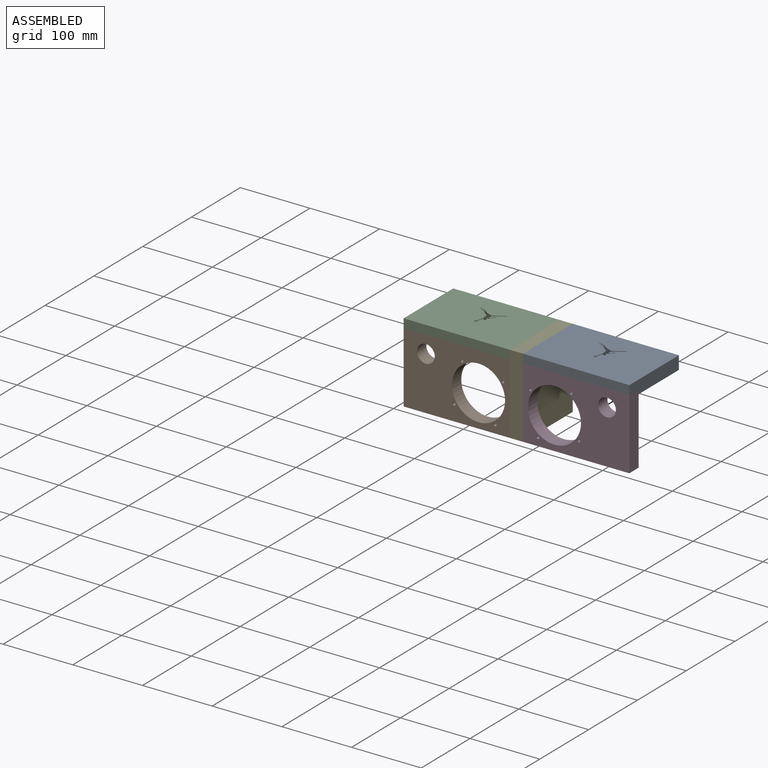
[diagram: assembled view]
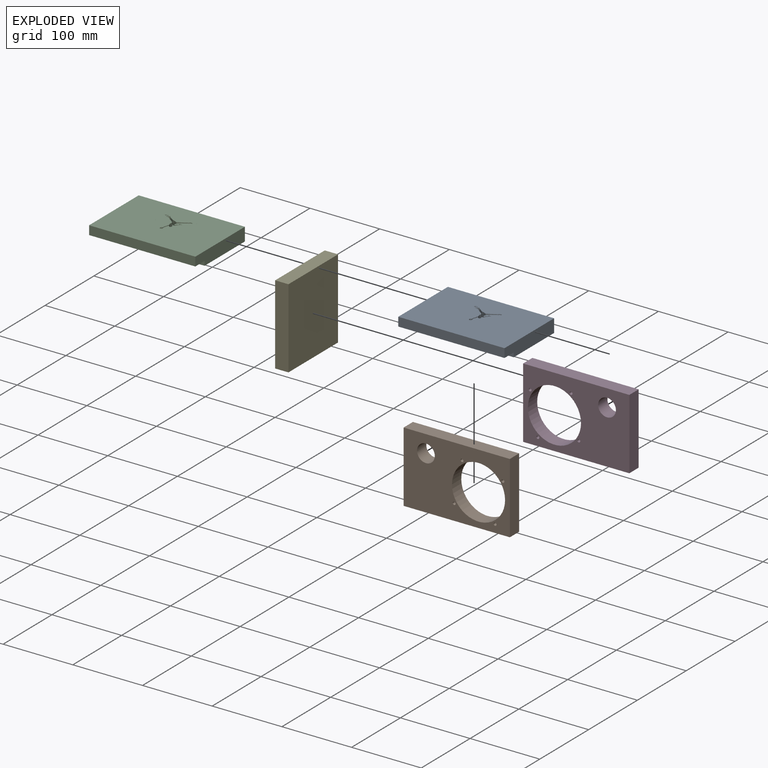
[diagram: exploded view]
GUIDED TOUR — MATED ASSEMBLY (Onshape document c4c73edd5049388b07cf1749, AutoMate assembly c4c73edd5049388b07cf1749_c25363004c646128de8135ba_3f393deac2e4389b0488b318_default)

This assembly has 5 components, labeled P0..P4 below (a component is one placed occurrence of a part; the same part can appear more than once), held together by 4 mates. A mate is a constraint between two components; its type names the relative motion it leaves free:
  FASTENED — locks the two components together rigidly (no relative motion).
Axis/direction vectors are unit vectors and 'through' points are millimeter coordinates, both in the assembly's world frame.

MATES
  1. FASTENED "Fastened 3": P0 <-> P4, direction (-1.000, 0.000, 0.000) through (143.09, 75.60, 11.51) mm
  2. FASTENED "Fastened 2": P2 <-> P4, direction (1.000, 0.000, 0.000) through (124.04, 75.60, 11.51) mm
  3. FASTENED "Fastened 4": P0 <-> P3, direction (0.000, 0.000, 1.000) through (143.09, 75.60, -1.19) mm
  4. FASTENED "Fastened 1": P1 <-> P2, direction (0.000, 0.000, 1.000) through (124.04, 75.60, -1.19) mm

ASSEMBLY ORDER
  1. P3 — the base component [order verified]
  2. P0 [order verified]
  3. P4 [order verified]
  4. P1 [order verified]
  5. P2 [order verified]
Order-tag legend:
  [order verified] — this step's position reverses a verified removal order: the component was checked to insert without passing through the ones already placed.

Of the 5 components, 5 carry the full construction recipe — the FeatureScript program that regenerates the part's solid from scratch; the rest are supplied as boundary geometry only.
Each toured component is shown spotlighted twice — in the assembled view, then in the exploded view, where a leader line traces a displaced component back to its assembled socket (saturated green if recipe-attached, orange if geometry-only; every other component desaturated gray) — followed by its recipe or geometry summary and the mates that hold it.
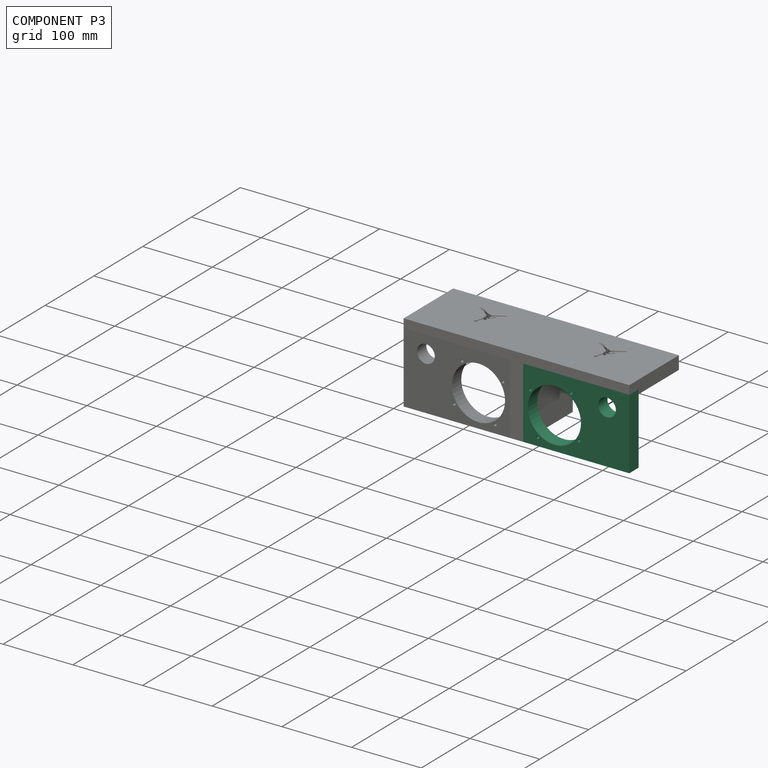
[diagram: component P3 — assembled]
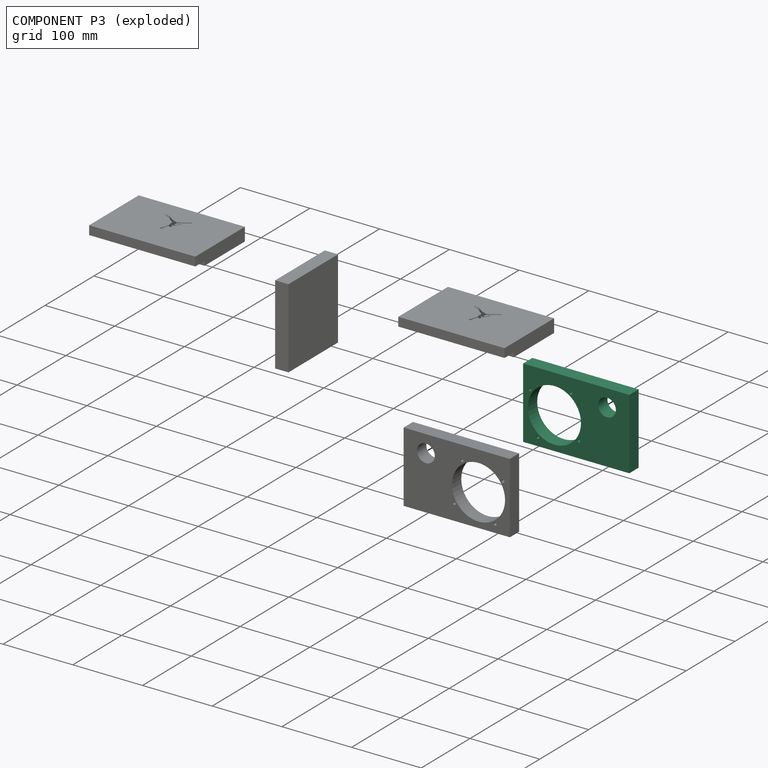
[diagram: component P3 — exploded]
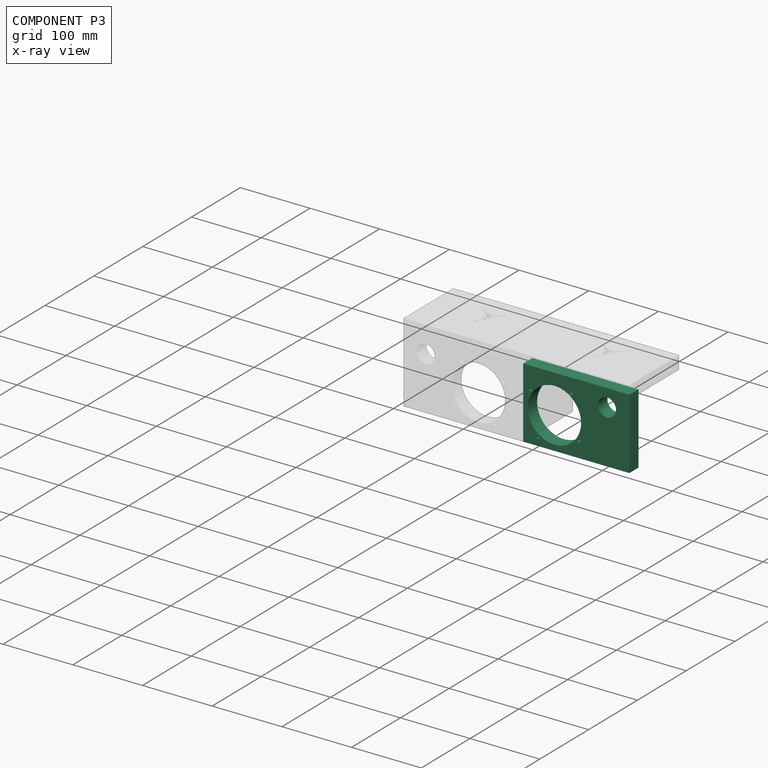
[diagram: component P3 — x-ray view]
COMPONENT P3 — same part as P1 (CADFS 00364374); its construction recipe is shown at P1.
Held by: FASTENED mate "Fastened 4" to P0.
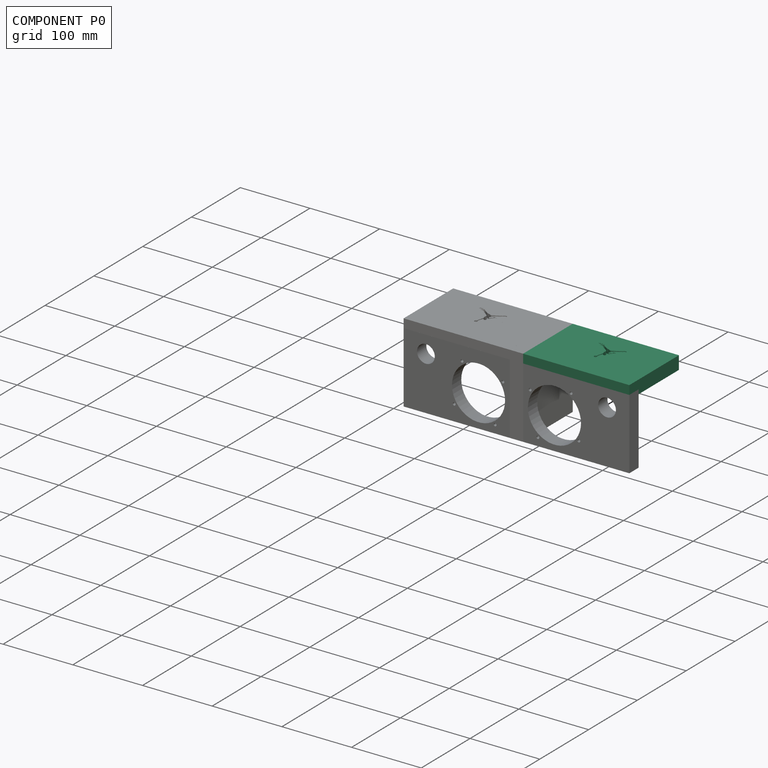
[diagram: component P0 — assembled]
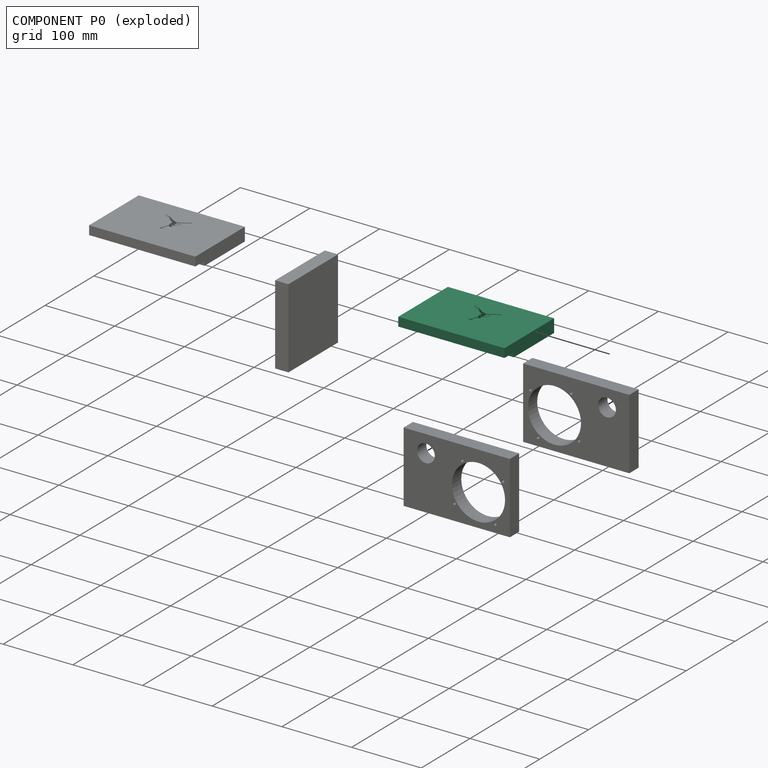
[diagram: component P0 — exploded]
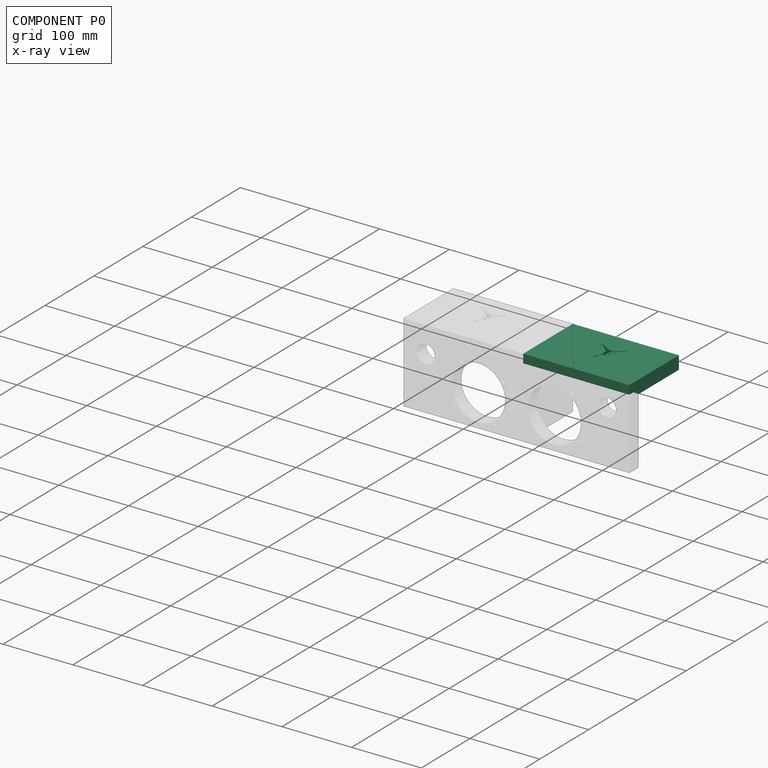
[diagram: component P0 — x-ray view]
COMPONENT P0 — recipe-attached (CADFS 00364375, mesh-verified: the recipe's output STEP matches this component's geometry to below the mesh-comparison resolution (tessellation chordal tolerance ~0.276 mm)).
Held by: FASTENED mate "Fastened 3" to P4; FASTENED mate "Fastened 4" to P3.
Construction recipe (FeatureScript — the CAD program that rebuilds this solid; sketch coordinates are in the units given by the * unit suffixes, e.g. mm):

FeatureScript 1511;
import(path : "onshape/std/geometry.fs", version : "1511.0");
import(path : "onshape/std/common.fs", version : "1511.0");
const mm = millimeter;
const VERTEX = EntityType.VERTEX;
const EDGE = EntityType.EDGE;
const FACE = EntityType.FACE;
const BODY = EntityType.BODY;
function v(x, y){return vector(x, y);}
function OD(order){return orderDisambiguation(order);}
function OSD(set){return originalSetDisambiguation(set);}
function TD(topology){return topologyDisambiguation(topology);}
function TDD(query){return trueDependencyDisambiguation(query);}
function sQuery(a, b, c) {return sketchEntityQuery(a, b, c);}

annotation { "Feature Type Name" : "Feature", "Feature Type Description" : "" }
export const myFeature = defineFeature(function(context is Context, id is Id, definition is map)
    precondition{}
    {
        {
            var Q0;
            Q0=qCreatedBy(makeId("Top.planeOp"),FACE);
            var sketch = newSketch(context, id + "F0", { "sketchPlane" : qUnion([Q0])});
            skLineSegment(sketch, "E0.bottom", {"start": v(-78.3, 43.63) * mm, "end": v(74.1, 43.63) * mm});
            skLineSegment(sketch, "E0.top", {"start": v(-78.3, -57.97) * mm, "end": v(74.1, -57.97) * mm});
            skLineSegment(sketch, "E0.left", {"start": v(-78.3, 43.63) * mm, "end": v(-78.3, -57.97) * mm});
            skLineSegment(sketch, "E0.right", {"start": v(74.1, 43.63) * mm, "end": v(74.1, -57.97) * mm});
            skSolve(sketch);
        }
        {
            var Q0;
            Q0 = qSketchRegion(id + "F0", true);
            extrude(context, id + "F1", {"entities" : qUnion([Q0]), "depth" : 19.05 * mm});
        }
        {
            var Q0;
            Q0=makeQuery(id+"F1.opExtrude","CAP_FACE",FACE,{"disambiguationData":[OSD([sQuery(id+"F0.wireOp",EDGE,"E0.bottom"),sQuery(id+"F0.wireOp",EDGE,"E0.top"),sQuery(id+"F0.wireOp",EDGE,"E0.left"),sQuery(id+"F0.wireOp",EDGE,"E0.right")])],"isStart":true});
            var sketch = newSketch(context, id + "F2", { "sketchPlane" : qUnion([Q0])});
            skLineSegment(sketch, "E1.bottom", {"start": v(74.1, 57.97) * mm, "end": v(-78.3, 57.97) * mm});
            skLineSegment(sketch, "E1.top", {"start": v(74.1, 38.92) * mm, "end": v(-78.3, 38.92) * mm});
            skLineSegment(sketch, "E1.left", {"start": v(74.1, 57.97) * mm, "end": v(74.1, 38.92) * mm});
            skLineSegment(sketch, "E1.right", {"start": v(-78.3, 57.97) * mm, "end": v(-78.3, 38.92) * mm});
            skSolve(sketch);
        }
        {
            var Q0;
            Q0 = qSketchRegion(id + "F2", true);
            extrude(context, id + "F3", {"entities" : qUnion([Q0]), "operationType" : NewBodyOperationType.REMOVE, "oppositeDirection" : true, "depth" : 6.35 * mm});
        }
        {
            var Q0;
            Q0=makeQuery(id+"F1.opExtrude","CAP_FACE",FACE,{"disambiguationData":[OSD([sQuery(id+"F0.wireOp",EDGE,"E0.bottom"),sQuery(id+"F0.wireOp",EDGE,"E0.top"),sQuery(id+"F0.wireOp",EDGE,"E0.left"),sQuery(id+"F0.wireOp",EDGE,"E0.right")])],"isStart":false});
            var sketch = newSketch(context, id + "F4", { "sketchPlane" : qUnion([Q0])});
            skLineSegment(sketch, "E2", {"start": v(-20.56, 18.4) * mm, "end": v(-21.26, 16.34) * mm});
            skLineSegment(sketch, "E3", {"start": v(-21.26, 16.34) * mm, "end": v(-22.15, 16.34) * mm});
            skLineSegment(sketch, "E4", {"start": v(-22.15, 16.34) * mm, "end": v(-22.01, 16.76) * mm});
            skLineSegment(sketch, "E5", {"start": v(-21.49, 18.4) * mm, "end": v(-20.56, 18.4) * mm});
            skLineSegment(sketch, "E6", {"start": v(-18.45, 16.34) * mm, "end": v(-18.9, 16.34) * mm});
            skLineSegment(sketch, "E7", {"start": v(-18.9, 16.34) * mm, "end": v(-18.2, 18.4) * mm});
            skLineSegment(sketch, "E8", {"start": v(-18.2, 18.4) * mm, "end": v(-17.73, 18.4) * mm});
            skLineSegment(sketch, "E9", {"start": v(-17.73, 18.4) * mm, "end": v(-17.77, 17.47) * mm});
            skLineSegment(sketch, "E10", {"start": v(-17.77, 17.47) * mm, "end": v(-17.45, 18.4) * mm});
            skLineSegment(sketch, "E11", {"start": v(-17.45, 18.4) * mm, "end": v(-17, 18.4) * mm});
            skLineSegment(sketch, "E12", {"start": v(-17, 18.4) * mm, "end": v(-17.7, 16.34) * mm});
            skLineSegment(sketch, "E13", {"start": v(-17.7, 16.34) * mm, "end": v(-18.15, 16.34) * mm});
            skLineSegment(sketch, "E14", {"start": v(-18.15, 16.34) * mm, "end": v(-18.14, 17.27) * mm});
            skLineSegment(sketch, "E15", {"start": v(-18.14, 17.27) * mm, "end": v(-18.45, 16.34) * mm});
            skLineSegment(sketch, "E16", {"start": v(-19.11, 16.34) * mm, "end": v(-19.65, 16.34) * mm});
            skLineSegment(sketch, "E17", {"start": v(-19.65, 16.34) * mm, "end": v(-18.95, 18.4) * mm});
            skLineSegment(sketch, "E18", {"start": v(-18.95, 18.4) * mm, "end": v(-18.41, 18.4) * mm});
            skLineSegment(sketch, "E19", {"start": v(-18.41, 18.4) * mm, "end": v(-19.11, 16.34) * mm, "construction": true});
            skLineSegment(sketch, "E20", {"start": v(-20.64, 16.34) * mm, "end": v(-21.14, 16.34) * mm});
            skLineSegment(sketch, "E21", {"start": v(-21.14, 16.34) * mm, "end": v(-20.52, 17.27) * mm});
            skLineSegment(sketch, "E22", {"start": v(-20.52, 17.27) * mm, "end": v(-20.47, 18.4) * mm});
            skLineSegment(sketch, "E23", {"start": v(-20.47, 18.4) * mm, "end": v(-19.92, 18.4) * mm});
            skLineSegment(sketch, "E24", {"start": v(-19.92, 18.4) * mm, "end": v(-20, 17.52) * mm});
            skLineSegment(sketch, "E25", {"start": v(-20, 17.52) * mm, "end": v(-19.7, 18.4) * mm});
            skLineSegment(sketch, "E26", {"start": v(-19.7, 18.4) * mm, "end": v(-19.16, 18.4) * mm});
            skLineSegment(sketch, "E27", {"start": v(-19.16, 18.4) * mm, "end": v(-19.86, 16.34) * mm});
            skLineSegment(sketch, "E28", {"start": v(-19.86, 16.34) * mm, "end": v(-20.4, 16.34) * mm});
            skLineSegment(sketch, "E29", {"start": v(-20.4, 16.34) * mm, "end": v(-20.12, 17.14) * mm});
            skLineSegment(sketch, "E30", {"start": v(-20.12, 17.14) * mm, "end": v(-20.64, 16.34) * mm});
            skCircle(sketch, "E31", {"center": v(23.17, 18.02) * mm, "radius": 0.1 * mm});
            skCircle(sketch, "E32", {"center": v(-23.17, 18.02) * mm, "radius": 0.1 * mm});
            skCircle(sketch, "E33", {"center": v(-23.17, -18.02) * mm, "radius": 0.1 * mm});
            skCircle(sketch, "E34", {"center": v(23.17, -18.02) * mm, "radius": 0.1 * mm});
            skCircle(sketch, "E35", {"center": v(23.17, -0.48) * mm, "radius": 0.1 * mm});
            skCircle(sketch, "E36", {"center": v(0, 18.02) * mm, "radius": 0.1 * mm});
            skCircle(sketch, "E37", {"center": v(-23.17, -0.48) * mm, "radius": 0.1 * mm});
            skCircle(sketch, "E38", {"center": v(0, -18.02) * mm, "radius": 0.1 * mm});
            skLineSegment(sketch, "E39", {"start": v(-3.9, -10.55) * mm, "end": v(-4, -11.58) * mm});
            skLineSegment(sketch, "E40", {"start": v(24.2, 19.05) * mm, "end": v(-24.2, 19.05) * mm, "construction": true});
            skLineSegment(sketch, "E41", {"start": v(-24.2, -19.05) * mm, "end": v(24.2, -19.05) * mm, "construction": true});
            skLineSegment(sketch, "E42", {"start": v(24.2, -19.05) * mm, "end": v(24.2, 19.05) * mm, "construction": true});
            skLineSegment(sketch, "E43", {"start": v(-24.2, 19.05) * mm, "end": v(-24.2, -19.05) * mm, "construction": true});
            skArc(sketch, "E44", {"start": v(-3.94, -10.35) * mm, "mid": v(-3.93, -10.45) * mm, "end": v(-3.9, -10.55) * mm});
            skArc(sketch, "E45", {"start": v(-1.72, -7.9) * mm, "mid": v(-1.37, -7.08) * mm, "end": v(-1.13, -6.21) * mm});
            skArc(sketch, "E46", {"start": v(-1.13, -6.21) * mm, "mid": v(-1.1, -6.16) * mm, "end": v(-1.08, -6.1) * mm});
            skArc(sketch, "E47", {"start": v(-1.75, -8.61) * mm, "mid": v(-1.7, -8.26) * mm, "end": v(-1.72, -7.9) * mm});
            skArc(sketch, "E48", {"start": v(-2.12, -9.3) * mm, "mid": v(-1.92, -8.97) * mm, "end": v(-1.75, -8.61) * mm});
            skArc(sketch, "E49", {"start": v(-2.08, -9.41) * mm, "mid": v(-2.08, -9.35) * mm, "end": v(-2.12, -9.3) * mm});
            skLineSegment(sketch, "E50", {"start": v(-2.49, -10.76) * mm, "end": v(-2.08, -9.41) * mm});
            skArc(sketch, "E51", {"start": v(-2.68, -10.92) * mm, "mid": v(-2.56, -10.87) * mm, "end": v(-2.49, -10.76) * mm});
            skLineSegment(sketch, "E52", {"start": v(-3.12, -12.7) * mm, "end": v(-2.68, -10.92) * mm});
            skArc(sketch, "E53", {"start": v(-2.97, -13.33) * mm, "mid": v(-3.02, -13) * mm, "end": v(-3.12, -12.7) * mm});
            skArc(sketch, "E54", {"start": v(-2.44, -14.7) * mm, "mid": v(-2.62, -13.99) * mm, "end": v(-2.97, -13.33) * mm});
            skArc(sketch, "E55", {"start": v(-4.28, -13.3) * mm, "mid": v(-5.57, -16.9) * mm, "end": v(-2.44, -14.7) * mm});
            skArc(sketch, "E56", {"start": v(-4.28, -13.3) * mm, "mid": v(-4.13, -13.17) * mm, "end": v(-4.19, -12.98) * mm});
            skArc(sketch, "E57", {"start": v(-4.17, -12.53) * mm, "mid": v(-4.23, -12.76) * mm, "end": v(-4.19, -12.98) * mm});
            skArc(sketch, "E58", {"start": v(-4.17, -12.53) * mm, "mid": v(-4.06, -12.06) * mm, "end": v(-4, -11.58) * mm});
            skArc(sketch, "E59", {"start": v(-3.8, -9.3) * mm, "mid": v(-3.9, -9.82) * mm, "end": v(-3.94, -10.35) * mm});
            skArc(sketch, "E60", {"start": v(-3.44, -8.7) * mm, "mid": v(-3.68, -8.97) * mm, "end": v(-3.8, -9.3) * mm});
            skArc(sketch, "E61", {"start": v(-2.87, -6.92) * mm, "mid": v(-3.21, -7.8) * mm, "end": v(-3.44, -8.7) * mm});
            skArc(sketch, "E62", {"start": v(-2.66, -5.86) * mm, "mid": v(-2.83, -6.38) * mm, "end": v(-2.87, -6.92) * mm});
            skArc(sketch, "E63", {"start": v(-2.65, -5.2) * mm, "mid": v(-2.66, -5.53) * mm, "end": v(-2.66, -5.86) * mm});
            skArc(sketch, "E64", {"start": v(-2.47, -4.51) * mm, "mid": v(-2.59, -4.85) * mm, "end": v(-2.65, -5.2) * mm});
            skArc(sketch, "E65", {"start": v(-2.1, -3.69) * mm, "mid": v(-2.3, -4.1) * mm, "end": v(-2.47, -4.51) * mm});
            skArc(sketch, "E66", {"start": v(-2.1, -3.69) * mm, "mid": v(-2.06, -3.55) * mm, "end": v(-2.04, -3.4) * mm});
            skArc(sketch, "E67", {"start": v(-2.04, -3.4) * mm, "mid": v(-2.03, -3.08) * mm, "end": v(-2.04, -2.76) * mm});
            skArc(sketch, "E68", {"start": v(-2.04, -2.76) * mm, "mid": v(-2.11, -2.3) * mm, "end": v(-2.23, -1.83) * mm});
            skArc(sketch, "E69", {"start": v(-2.23, -1.83) * mm, "mid": v(-2.36, -1.49) * mm, "end": v(-2.54, -1.17) * mm});
            skArc(sketch, "E70", {"start": v(-2.8, -0.48) * mm, "mid": v(-2.71, -0.84) * mm, "end": v(-2.54, -1.17) * mm});
            skArc(sketch, "E71", {"start": v(-2.87, 0.87) * mm, "mid": v(-2.85, 0.2) * mm, "end": v(-2.8, -0.48) * mm});
            skArc(sketch, "E72", {"start": v(-2.48, 3.52) * mm, "mid": v(-2.76, 2.21) * mm, "end": v(-2.87, 0.87) * mm});
            skArc(sketch, "E73", {"start": v(-2.77, 4.24) * mm, "mid": v(-2.65, 3.87) * mm, "end": v(-2.48, 3.52) * mm});
            skArc(sketch, "E74", {"start": v(-3.56, 4.85) * mm, "mid": v(-3.2, 4.5) * mm, "end": v(-2.77, 4.24) * mm});
            skArc(sketch, "E75", {"start": v(-3.64, 5.38) * mm, "mid": v(-3.66, 5.1) * mm, "end": v(-3.56, 4.85) * mm});
            skArc(sketch, "E76", {"start": v(-3.5, 5.63) * mm, "mid": v(-3.57, 5.5) * mm, "end": v(-3.64, 5.38) * mm});
            skArc(sketch, "E77", {"start": v(-7.2, 8.26) * mm, "mid": v(-5.5, 6.72) * mm, "end": v(-3.5, 5.63) * mm});
            skArc(sketch, "E78", {"start": v(-7.96, 8.54) * mm, "mid": v(-7.6, 8.35) * mm, "end": v(-7.2, 8.26) * mm});
            skArc(sketch, "E79", {"start": v(-12.78, 12.33) * mm, "mid": v(-10.45, 10.33) * mm, "end": v(-7.96, 8.54) * mm});
            skArc(sketch, "E80", {"start": v(-12.78, 12.33) * mm, "mid": v(-13.08, 12.64) * mm, "end": v(-13.43, 12.89) * mm});
            skArc(sketch, "E81", {"start": v(-13.54, 12.94) * mm, "mid": v(-13.49, 12.91) * mm, "end": v(-13.43, 12.89) * mm});
            skArc(sketch, "E82", {"start": v(-13.6, 13.18) * mm, "mid": v(-13.63, 13.05) * mm, "end": v(-13.54, 12.94) * mm});
            skArc(sketch, "E83", {"start": v(-13.52, 13.33) * mm, "mid": v(-13.56, 13.25) * mm, "end": v(-13.6, 13.18) * mm});
            skArc(sketch, "E84", {"start": v(-13.52, 13.33) * mm, "mid": v(-13.6, 13.47) * mm, "end": v(-13.74, 13.54) * mm});
            skArc(sketch, "E85", {"start": v(-14.02, 13.56) * mm, "mid": v(-13.88, 13.53) * mm, "end": v(-13.74, 13.54) * mm});
            skArc(sketch, "E86", {"start": v(-14.02, 13.56) * mm, "mid": v(-14.15, 13.67) * mm, "end": v(-14.3, 13.78) * mm});
            skArc(sketch, "E87", {"start": v(-14.3, 13.78) * mm, "mid": v(-14.45, 13.82) * mm, "end": v(-14.6, 13.77) * mm});
            skArc(sketch, "E88", {"start": v(-14.6, 13.77) * mm, "mid": v(-14.7, 13.7) * mm, "end": v(-14.78, 13.6) * mm});
            skArc(sketch, "E89", {"start": v(-14.98, 13.6) * mm, "mid": v(-14.88, 13.59) * mm, "end": v(-14.78, 13.6) * mm});
            skArc(sketch, "E90", {"start": v(-15.76, 13.19) * mm, "mid": v(-15.32, 13.3) * mm, "end": v(-14.98, 13.6) * mm});
            skArc(sketch, "E91", {"start": v(-15.9, 13.18) * mm, "mid": v(-15.83, 13.18) * mm, "end": v(-15.76, 13.19) * mm});
            skArc(sketch, "E92", {"start": v(-15.93, 13.35) * mm, "mid": v(-15.98, 13.25) * mm, "end": v(-15.9, 13.18) * mm});
            skArc(sketch, "E93", {"start": v(-15.93, 13.35) * mm, "mid": v(-15.77, 13.39) * mm, "end": v(-15.62, 13.46) * mm});
            skArc(sketch, "E94", {"start": v(-15.62, 13.46) * mm, "mid": v(-15.21, 13.8) * mm, "end": v(-14.9, 14.23) * mm});
            skLineSegment(sketch, "E95", {"start": v(-16.8, 14.28) * mm, "end": v(-14.9, 14.23) * mm});
            skArc(sketch, "E96", {"start": v(-16.8, 14.28) * mm, "mid": v(-16.96, 14.22) * mm, "end": v(-17.1, 14.13) * mm});
            skArc(sketch, "E97", {"start": v(-17.67, 13.8) * mm, "mid": v(-17.37, 13.94) * mm, "end": v(-17.1, 14.13) * mm});
            skArc(sketch, "E98", {"start": v(-18.09, 13.8) * mm, "mid": v(-17.88, 13.77) * mm, "end": v(-17.67, 13.8) * mm});
            skArc(sketch, "E99", {"start": v(-18.46, 14.04) * mm, "mid": v(-18.3, 13.88) * mm, "end": v(-18.09, 13.8) * mm});
            skArc(sketch, "E100", {"start": v(-18.48, 14.26) * mm, "mid": v(-18.5, 14.15) * mm, "end": v(-18.46, 14.04) * mm});
            skArc(sketch, "E101", {"start": v(-17.16, 15.47) * mm, "mid": v(-17.84, 14.9) * mm, "end": v(-18.48, 14.26) * mm});
            skArc(sketch, "E102", {"start": v(-16.05, 16.16) * mm, "mid": v(-16.63, 15.85) * mm, "end": v(-17.16, 15.47) * mm});
            skArc(sketch, "E103", {"start": v(-16.05, 16.16) * mm, "mid": v(-15.58, 16.42) * mm, "end": v(-15.16, 16.75) * mm});
            skArc(sketch, "E104", {"start": v(-14.47, 17.28) * mm, "mid": v(-14.84, 17.05) * mm, "end": v(-15.16, 16.75) * mm});
            skArc(sketch, "E105", {"start": v(-14.19, 17.24) * mm, "mid": v(-14.32, 17.3) * mm, "end": v(-14.47, 17.28) * mm});
            skArc(sketch, "E106", {"start": v(-13.74, 16.38) * mm, "mid": v(-13.93, 16.83) * mm, "end": v(-14.19, 17.24) * mm});
            skArc(sketch, "E107", {"start": v(-13.72, 16.24) * mm, "mid": v(-13.73, 16.31) * mm, "end": v(-13.74, 16.38) * mm});
            skArc(sketch, "E108", {"start": v(-13.05, 15.43) * mm, "mid": v(-13.34, 15.87) * mm, "end": v(-13.72, 16.24) * mm});
            skArc(sketch, "E109", {"start": v(-12.41, 14.78) * mm, "mid": v(-12.7, 15.14) * mm, "end": v(-13.05, 15.43) * mm});
            skArc(sketch, "E110", {"start": v(-12.41, 14.78) * mm, "mid": v(-12.23, 14.6) * mm, "end": v(-12.03, 14.44) * mm});
            skArc(sketch, "E111", {"start": v(-11.5, 14.35) * mm, "mid": v(-11.76, 14.43) * mm, "end": v(-12.03, 14.44) * mm});
            skArc(sketch, "E112", {"start": v(-10.03, 13.2) * mm, "mid": v(-10.75, 13.8) * mm, "end": v(-11.5, 14.35) * mm});
            skArc(sketch, "E113", {"start": v(-9.42, 12.95) * mm, "mid": v(-9.71, 13.1) * mm, "end": v(-10.03, 13.2) * mm});
            skArc(sketch, "E114", {"start": v(-9.42, 12.95) * mm, "mid": v(-8.57, 12.2) * mm, "end": v(-7.66, 11.52) * mm});
            skArc(sketch, "E115", {"start": v(-7.66, 11.52) * mm, "mid": v(-7.3, 11.23) * mm, "end": v(-6.91, 10.98) * mm});
            skArc(sketch, "E116", {"start": v(-6.18, 10.54) * mm, "mid": v(-6.53, 10.79) * mm, "end": v(-6.91, 10.98) * mm});
            skArc(sketch, "E117", {"start": v(-6.18, 10.54) * mm, "mid": v(-5.6, 10.38) * mm, "end": v(-5.02, 10.25) * mm});
            skArc(sketch, "E118", {"start": v(-3.08, 9.6) * mm, "mid": v(-4.03, 10) * mm, "end": v(-5.02, 10.25) * mm});
            skArc(sketch, "E119", {"start": v(-3.08, 9.6) * mm, "mid": v(-2.81, 9.45) * mm, "end": v(-2.52, 9.33) * mm});
            skArc(sketch, "E120", {"start": v(-1.2, 8.76) * mm, "mid": v(-1.86, 9.06) * mm, "end": v(-2.52, 9.33) * mm});
            skArc(sketch, "E121", {"start": v(0.56, 8.04) * mm, "mid": v(-0.3, 8.45) * mm, "end": v(-1.2, 8.76) * mm});
            skArc(sketch, "E122", {"start": v(0.56, 8.04) * mm, "mid": v(0.77, 8) * mm, "end": v(0.98, 8.06) * mm});
            skArc(sketch, "E123", {"start": v(0.98, 8.06) * mm, "mid": v(1.95, 8.49) * mm, "end": v(2.89, 9) * mm});
            skArc(sketch, "E124", {"start": v(6.07, 10.48) * mm, "mid": v(4.44, 9.8) * mm, "end": v(2.89, 9) * mm});
            skArc(sketch, "E125", {"start": v(9.63, 12.55) * mm, "mid": v(7.81, 11.58) * mm, "end": v(6.07, 10.48) * mm});
            skArc(sketch, "E126", {"start": v(9.63, 12.55) * mm, "mid": v(10.73, 13.26) * mm, "end": v(11.76, 14.08) * mm});
            skArc(sketch, "E127", {"start": v(11.97, 14.1) * mm, "mid": v(11.86, 14.12) * mm, "end": v(11.76, 14.08) * mm});
            skArc(sketch, "E128", {"start": v(12.08, 14.05) * mm, "mid": v(12.03, 14.08) * mm, "end": v(11.97, 14.1) * mm});
            skArc(sketch, "E129", {"start": v(12.08, 14.05) * mm, "mid": v(12.15, 14.03) * mm, "end": v(12.2, 14.06) * mm});
            skArc(sketch, "E130", {"start": v(12.59, 14.33) * mm, "mid": v(12.4, 14.2) * mm, "end": v(12.2, 14.06) * mm});
            skArc(sketch, "E131", {"start": v(12.84, 14.36) * mm, "mid": v(12.71, 14.36) * mm, "end": v(12.59, 14.33) * mm});
            skArc(sketch, "E132", {"start": v(13.09, 14.49) * mm, "mid": v(12.96, 14.44) * mm, "end": v(12.84, 14.36) * mm});
            skArc(sketch, "E133", {"start": v(13.09, 14.49) * mm, "mid": v(13.23, 14.61) * mm, "end": v(13.33, 14.78) * mm});
            skArc(sketch, "E134", {"start": v(13.48, 14.83) * mm, "mid": v(13.4, 14.82) * mm, "end": v(13.33, 14.78) * mm});
            skArc(sketch, "E135", {"start": v(13.48, 14.83) * mm, "mid": v(13.66, 15.03) * mm, "end": v(13.79, 15.25) * mm});
            skArc(sketch, "E136", {"start": v(14.1, 15.53) * mm, "mid": v(13.92, 15.43) * mm, "end": v(13.79, 15.25) * mm});
            skArc(sketch, "E137", {"start": v(14.27, 15.55) * mm, "mid": v(14.19, 15.55) * mm, "end": v(14.1, 15.53) * mm});
            skArc(sketch, "E138", {"start": v(14.27, 15.55) * mm, "mid": v(14.4, 15.68) * mm, "end": v(14.49, 15.83) * mm});
            skArc(sketch, "E139", {"start": v(14.65, 15.96) * mm, "mid": v(14.54, 15.93) * mm, "end": v(14.49, 15.83) * mm});
            skArc(sketch, "E140", {"start": v(14.76, 16.17) * mm, "mid": v(14.69, 16.07) * mm, "end": v(14.65, 15.96) * mm});
            skArc(sketch, "E141", {"start": v(15.05, 16.41) * mm, "mid": v(14.9, 16.3) * mm, "end": v(14.76, 16.17) * mm});
            skArc(sketch, "E142", {"start": v(15.34, 16.47) * mm, "mid": v(15.2, 16.46) * mm, "end": v(15.05, 16.41) * mm});
            skArc(sketch, "E143", {"start": v(15.55, 16.47) * mm, "mid": v(15.44, 16.47) * mm, "end": v(15.34, 16.47) * mm});
            skArc(sketch, "E144", {"start": v(15.55, 16.47) * mm, "mid": v(16, 16.37) * mm, "end": v(16.45, 16.48) * mm});
            skArc(sketch, "E145", {"start": v(16.45, 16.48) * mm, "mid": v(16.61, 16.57) * mm, "end": v(16.76, 16.67) * mm});
            skArc(sketch, "E146", {"start": v(17.45, 16.64) * mm, "mid": v(17.1, 16.7) * mm, "end": v(16.76, 16.67) * mm});
            skArc(sketch, "E147", {"start": v(18.02, 16.22) * mm, "mid": v(17.76, 16.46) * mm, "end": v(17.45, 16.64) * mm});
            skArc(sketch, "E148", {"start": v(18.47, 15.58) * mm, "mid": v(18.27, 15.92) * mm, "end": v(18.02, 16.22) * mm});
            skArc(sketch, "E149", {"start": v(18.46, 15.27) * mm, "mid": v(18.5, 15.42) * mm, "end": v(18.47, 15.58) * mm});
            skArc(sketch, "E150", {"start": v(17.94, 14.81) * mm, "mid": v(18.22, 15.01) * mm, "end": v(18.46, 15.27) * mm});
            skArc(sketch, "E151", {"start": v(17.24, 14.7) * mm, "mid": v(17.6, 14.72) * mm, "end": v(17.94, 14.81) * mm});
            skLineSegment(sketch, "E152", {"start": v(16.95, 14.7) * mm, "end": v(17.24, 14.7) * mm});
            skArc(sketch, "E153", {"start": v(16.95, 14.7) * mm, "mid": v(16.6, 14.6) * mm, "end": v(16.26, 14.44) * mm});
            skLineSegment(sketch, "E154", {"start": v(16.05, 14.44) * mm, "end": v(16.26, 14.44) * mm});
            skArc(sketch, "E155", {"start": v(15.65, 14.26) * mm, "mid": v(15.86, 14.34) * mm, "end": v(16.05, 14.44) * mm});
            skArc(sketch, "E156", {"start": v(15.64, 14.04) * mm, "mid": v(15.66, 14.15) * mm, "end": v(15.65, 14.26) * mm});
            skArc(sketch, "E157", {"start": v(15.42, 13.84) * mm, "mid": v(15.55, 13.92) * mm, "end": v(15.64, 14.04) * mm});
            skArc(sketch, "E158", {"start": v(15.24, 13.86) * mm, "mid": v(15.32, 13.83) * mm, "end": v(15.42, 13.84) * mm});
            skArc(sketch, "E159", {"start": v(15.24, 13.86) * mm, "mid": v(15.15, 13.85) * mm, "end": v(15.16, 13.77) * mm});
            skArc(sketch, "E160", {"start": v(15.25, 13.42) * mm, "mid": v(15.23, 13.6) * mm, "end": v(15.16, 13.77) * mm});
            skArc(sketch, "E161", {"start": v(15.25, 13.42) * mm, "mid": v(15.26, 13.3) * mm, "end": v(15.29, 13.2) * mm});
            skArc(sketch, "E162", {"start": v(15.32, 12.9) * mm, "mid": v(15.33, 13.05) * mm, "end": v(15.29, 13.2) * mm});
            skArc(sketch, "E163", {"start": v(15.2, 12.77) * mm, "mid": v(15.28, 12.82) * mm, "end": v(15.32, 12.9) * mm});
            skArc(sketch, "E164", {"start": v(15.05, 12.88) * mm, "mid": v(15.1, 12.8) * mm, "end": v(15.2, 12.77) * mm});
            skArc(sketch, "E165", {"start": v(14.95, 13.3) * mm, "mid": v(14.98, 13.09) * mm, "end": v(15.05, 12.88) * mm});
            skArc(sketch, "E166", {"start": v(14.95, 13.3) * mm, "mid": v(14.94, 13.4) * mm, "end": v(14.88, 13.48) * mm});
            skArc(sketch, "E167", {"start": v(14.88, 13.48) * mm, "mid": v(14.78, 13.5) * mm, "end": v(14.68, 13.47) * mm});
            skArc(sketch, "E168", {"start": v(14.68, 13.47) * mm, "mid": v(14.62, 13.38) * mm, "end": v(14.58, 13.28) * mm});
            skArc(sketch, "E169", {"start": v(14.4, 13.06) * mm, "mid": v(14.52, 13.15) * mm, "end": v(14.58, 13.28) * mm});
            skArc(sketch, "E170", {"start": v(14.18, 13.09) * mm, "mid": v(14.29, 13.05) * mm, "end": v(14.4, 13.06) * mm});
            skArc(sketch, "E171", {"start": v(14.04, 13.21) * mm, "mid": v(14.1, 13.14) * mm, "end": v(14.18, 13.09) * mm});
            skArc(sketch, "E172", {"start": v(13.8, 13.05) * mm, "mid": v(13.93, 13.1) * mm, "end": v(14.04, 13.21) * mm});
            skArc(sketch, "E173", {"start": v(13.8, 13.05) * mm, "mid": v(13.78, 13) * mm, "end": v(13.83, 12.96) * mm});
            skArc(sketch, "E174", {"start": v(13.83, 12.78) * mm, "mid": v(13.88, 12.87) * mm, "end": v(13.83, 12.96) * mm});
            skArc(sketch, "E175", {"start": v(13.83, 12.78) * mm, "mid": v(13.4, 12.45) * mm, "end": v(13.04, 12.06) * mm});
            skArc(sketch, "E176", {"start": v(8.45, 9.11) * mm, "mid": v(10.9, 10.33) * mm, "end": v(13.04, 12.06) * mm});
            skArc(sketch, "E177", {"start": v(7.2, 8.47) * mm, "mid": v(7.9, 8.64) * mm, "end": v(8.45, 9.11) * mm});
            skArc(sketch, "E178", {"start": v(4.65, 5.97) * mm, "mid": v(6.05, 7.1) * mm, "end": v(7.2, 8.47) * mm});
            skArc(sketch, "E179", {"start": v(3.95, 5.48) * mm, "mid": v(4.37, 5.63) * mm, "end": v(4.65, 5.97) * mm});
            skArc(sketch, "E180", {"start": v(3.95, 5.48) * mm, "mid": v(3.75, 5.4) * mm, "end": v(3.58, 5.25) * mm});
            skArc(sketch, "E181", {"start": v(3.58, 5.25) * mm, "mid": v(3.42, 4.91) * mm, "end": v(3.38, 4.54) * mm});
            skArc(sketch, "E182", {"start": v(3.37, 3.98) * mm, "mid": v(3.4, 4.26) * mm, "end": v(3.38, 4.54) * mm});
            skArc(sketch, "E183", {"start": v(3.12, 3.42) * mm, "mid": v(3.28, 3.68) * mm, "end": v(3.37, 3.98) * mm});
            skArc(sketch, "E184", {"start": v(2.63, 3.25) * mm, "mid": v(2.9, 3.27) * mm, "end": v(3.12, 3.42) * mm});
            skArc(sketch, "E185", {"start": v(2.25, 2.76) * mm, "mid": v(2.45, 3) * mm, "end": v(2.63, 3.25) * mm});
            skArc(sketch, "E186", {"start": v(2.47, 1.7) * mm, "mid": v(2.38, 2.23) * mm, "end": v(2.25, 2.76) * mm});
            skArc(sketch, "E187", {"start": v(2.75, 0.97) * mm, "mid": v(2.73, 1.38) * mm, "end": v(2.47, 1.7) * mm});
            skArc(sketch, "E188", {"start": v(3.31, 0.14) * mm, "mid": v(3.06, 0.58) * mm, "end": v(2.75, 0.97) * mm});
            skArc(sketch, "E189", {"start": v(3.31, 0.14) * mm, "mid": v(3.46, 0.1) * mm, "end": v(3.6, 0.1) * mm});
            skArc(sketch, "E190", {"start": v(4.2, 0.59) * mm, "mid": v(3.81, 0.46) * mm, "end": v(3.6, 0.1) * mm});
            skArc(sketch, "E191", {"start": v(6.35, 2.93) * mm, "mid": v(5.07, 1.94) * mm, "end": v(4.2, 0.59) * mm});
            skArc(sketch, "E192", {"start": v(6.35, 2.93) * mm, "mid": v(7, 3.67) * mm, "end": v(7.23, 4.62) * mm});
            skArc(sketch, "E193", {"start": v(7.23, 4.62) * mm, "mid": v(7.22, 4.72) * mm, "end": v(7.2, 4.82) * mm});
            skArc(sketch, "E194", {"start": v(7.23, 5.07) * mm, "mid": v(7.2, 4.95) * mm, "end": v(7.2, 4.82) * mm});
            skArc(sketch, "E195", {"start": v(7.23, 5.07) * mm, "mid": v(7.24, 5.15) * mm, "end": v(7.22, 5.22) * mm});
            skArc(sketch, "E196", {"start": v(7.22, 5.22) * mm, "mid": v(7.12, 5.33) * mm, "end": v(6.99, 5.4) * mm});
            skArc(sketch, "E197", {"start": v(6.74, 5.5) * mm, "mid": v(6.86, 5.43) * mm, "end": v(6.99, 5.4) * mm});
            skArc(sketch, "E198", {"start": v(6.78, 5.77) * mm, "mid": v(6.71, 5.64) * mm, "end": v(6.74, 5.5) * mm});
            skArc(sketch, "E199", {"start": v(7.3, 5.78) * mm, "mid": v(7.04, 5.84) * mm, "end": v(6.78, 5.77) * mm});
            skArc(sketch, "E200", {"start": v(7.76, 5.42) * mm, "mid": v(7.56, 5.63) * mm, "end": v(7.3, 5.78) * mm});
            skArc(sketch, "E201", {"start": v(7.76, 5.42) * mm, "mid": v(7.85, 5.4) * mm, "end": v(7.93, 5.43) * mm});
            skLineSegment(sketch, "E202", {"start": v(8.3, 5.86) * mm, "end": v(7.93, 5.43) * mm});
            skArc(sketch, "E203", {"start": v(8.54, 6.04) * mm, "mid": v(8.41, 5.96) * mm, "end": v(8.3, 5.86) * mm});
            skArc(sketch, "E204", {"start": v(8.74, 6.08) * mm, "mid": v(8.63, 6.07) * mm, "end": v(8.54, 6.04) * mm});
            skArc(sketch, "E205", {"start": v(8.84, 5.88) * mm, "mid": v(8.84, 6) * mm, "end": v(8.74, 6.08) * mm});
            skArc(sketch, "E206", {"start": v(8.69, 5.63) * mm, "mid": v(8.77, 5.75) * mm, "end": v(8.84, 5.88) * mm});
            skArc(sketch, "E207", {"start": v(8.69, 5.63) * mm, "mid": v(8.69, 5.57) * mm, "end": v(8.74, 5.55) * mm});
            skArc(sketch, "E208", {"start": v(8.74, 5.55) * mm, "mid": v(8.93, 5.6) * mm, "end": v(9.12, 5.67) * mm});
            skArc(sketch, "E209", {"start": v(9.55, 5.81) * mm, "mid": v(9.32, 5.76) * mm, "end": v(9.12, 5.67) * mm});
            skArc(sketch, "E210", {"start": v(9.9, 5.79) * mm, "mid": v(9.73, 5.82) * mm, "end": v(9.55, 5.81) * mm});
            skArc(sketch, "E211", {"start": v(9.99, 5.64) * mm, "mid": v(9.99, 5.73) * mm, "end": v(9.9, 5.79) * mm});
            skArc(sketch, "E212", {"start": v(9.74, 5.48) * mm, "mid": v(9.88, 5.54) * mm, "end": v(9.99, 5.64) * mm});
            skArc(sketch, "E213", {"start": v(9.74, 5.48) * mm, "mid": v(9.53, 5.4) * mm, "end": v(9.33, 5.28) * mm});
            skArc(sketch, "E214", {"start": v(9.33, 5.28) * mm, "mid": v(9.33, 5.23) * mm, "end": v(9.38, 5.21) * mm});
            skArc(sketch, "E215", {"start": v(10.84, 5.22) * mm, "mid": v(10.11, 5.28) * mm, "end": v(9.38, 5.21) * mm});
            skArc(sketch, "E216", {"start": v(10.97, 5.09) * mm, "mid": v(10.94, 5.18) * mm, "end": v(10.84, 5.22) * mm});
            skArc(sketch, "E217", {"start": v(10.91, 4.96) * mm, "mid": v(10.96, 5.02) * mm, "end": v(10.97, 5.09) * mm});
            skArc(sketch, "E218", {"start": v(10.91, 4.96) * mm, "mid": v(10.3, 4.91) * mm, "end": v(9.7, 4.82) * mm});
            skArc(sketch, "E219", {"start": v(9.7, 4.82) * mm, "mid": v(9.27, 4.64) * mm, "end": v(8.88, 4.4) * mm});
            skArc(sketch, "E220", {"start": v(8.67, 4.15) * mm, "mid": v(8.78, 4.27) * mm, "end": v(8.88, 4.4) * mm});
            skArc(sketch, "E221", {"start": v(8.67, 4.15) * mm, "mid": v(8.29, 3.8) * mm, "end": v(7.96, 3.4) * mm});
            skArc(sketch, "E222", {"start": v(5.86, 0.24) * mm, "mid": v(7.06, 1.72) * mm, "end": v(7.96, 3.4) * mm});
            skArc(sketch, "E223", {"start": v(5.1, -1.02) * mm, "mid": v(5.56, -0.44) * mm, "end": v(5.86, 0.24) * mm});
            skArc(sketch, "E224", {"start": v(4.25, -2.45) * mm, "mid": v(4.72, -1.76) * mm, "end": v(5.1, -1.02) * mm});
            skArc(sketch, "E225", {"start": v(3.84, -2.9) * mm, "mid": v(4.07, -2.7) * mm, "end": v(4.25, -2.45) * mm});
            skArc(sketch, "E226", {"start": v(3.35, -3.04) * mm, "mid": v(3.61, -3.01) * mm, "end": v(3.84, -2.9) * mm});
            skArc(sketch, "E227", {"start": v(3.35, -3.04) * mm, "mid": v(3.04, -3.26) * mm, "end": v(2.82, -3.57) * mm});
            skArc(sketch, "E228", {"start": v(2.66, -3.95) * mm, "mid": v(2.76, -3.77) * mm, "end": v(2.82, -3.57) * mm});
            skArc(sketch, "E229", {"start": v(3.43, -4.97) * mm, "mid": v(3.14, -4.4) * mm, "end": v(2.66, -3.95) * mm});
            skArc(sketch, "E230", {"start": v(3.37, -5.82) * mm, "mid": v(3.46, -5.4) * mm, "end": v(3.43, -4.97) * mm});
            skArc(sketch, "E231", {"start": v(2.06, -7.06) * mm, "mid": v(2.86, -6.59) * mm, "end": v(3.37, -5.82) * mm});
            skArc(sketch, "E232", {"start": v(0.9, -6.84) * mm, "mid": v(1.46, -7.07) * mm, "end": v(2.06, -7.06) * mm});
            skArc(sketch, "E233", {"start": v(0.9, -6.84) * mm, "mid": v(0.7, -6.62) * mm, "end": v(0.49, -6.42) * mm});
            skArc(sketch, "E234", {"start": v(0.27, -6.23) * mm, "mid": v(0.35, -6.35) * mm, "end": v(0.49, -6.42) * mm});
            skArc(sketch, "E235", {"start": v(-0.1, -6.12) * mm, "mid": v(0.08, -6.19) * mm, "end": v(0.27, -6.23) * mm});
            skArc(sketch, "E236", {"start": v(-0.22, -6) * mm, "mid": v(-0.17, -6.08) * mm, "end": v(-0.1, -6.12) * mm});
            skArc(sketch, "E237", {"start": v(-0.2, -5.73) * mm, "mid": v(-0.23, -5.87) * mm, "end": v(-0.22, -6) * mm});
            skArc(sketch, "E238", {"start": v(-0.42, -5.38) * mm, "mid": v(-0.35, -5.58) * mm, "end": v(-0.2, -5.73) * mm});
            skArc(sketch, "E239", {"start": v(-1.08, -6.1) * mm, "mid": v(-0.7, -5.8) * mm, "end": v(-0.42, -5.38) * mm});
            skLineSegment(sketch, "E240", {"start": v(-22.01, 16.76) * mm, "end": v(-21.65, 16.76) * mm});
            skLineSegment(sketch, "E241", {"start": v(-21.52, 17.15) * mm, "end": v(-21.86, 17.15) * mm});
            skLineSegment(sketch, "E242", {"start": v(-21.86, 17.15) * mm, "end": v(-21.72, 17.54) * mm});
            skLineSegment(sketch, "E243", {"start": v(-21.65, 16.76) * mm, "end": v(-21.52, 17.15) * mm});
            skLineSegment(sketch, "E244", {"start": v(-21.72, 17.54) * mm, "end": v(-21.39, 17.54) * mm});
            skLineSegment(sketch, "E245", {"start": v(-21.39, 17.54) * mm, "end": v(-21.23, 18) * mm});
            skLineSegment(sketch, "E246", {"start": v(-21.23, 18) * mm, "end": v(-21.63, 18) * mm});
            skLineSegment(sketch, "E247", {"start": v(-21.63, 18) * mm, "end": v(-21.49, 18.4) * mm});
            skSolve(sketch);
        }
        {
            var Q0;
            Q0 = qSketchRegion(id + "F4", true);
            extrude(context, id + "F5", {"entities" : qUnion([Q0]), "operationType" : NewBodyOperationType.REMOVE, "oppositeDirection" : true, "depth" : 6.35 * mm});
        }
    });
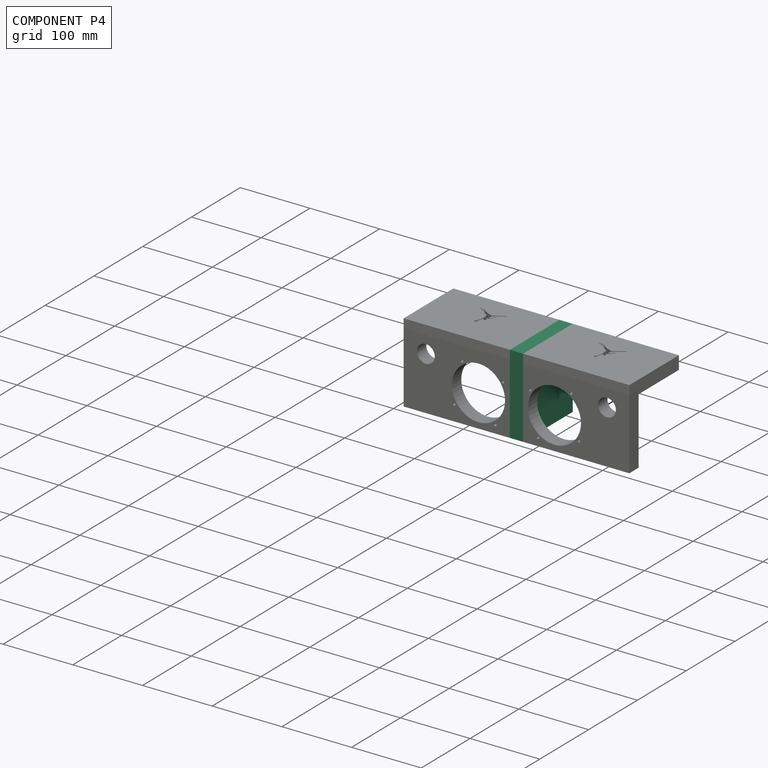
[diagram: component P4 — assembled]
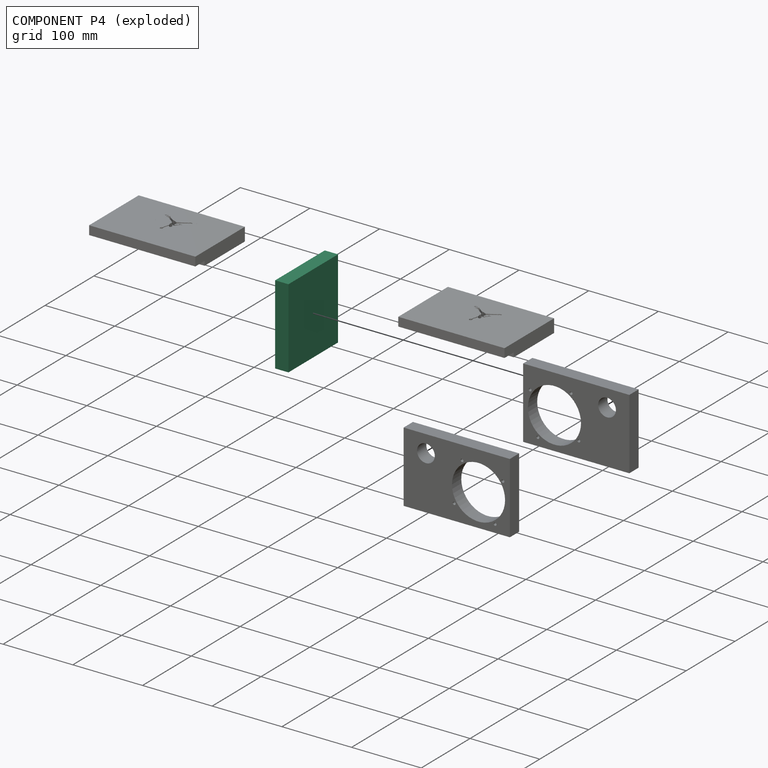
[diagram: component P4 — exploded]
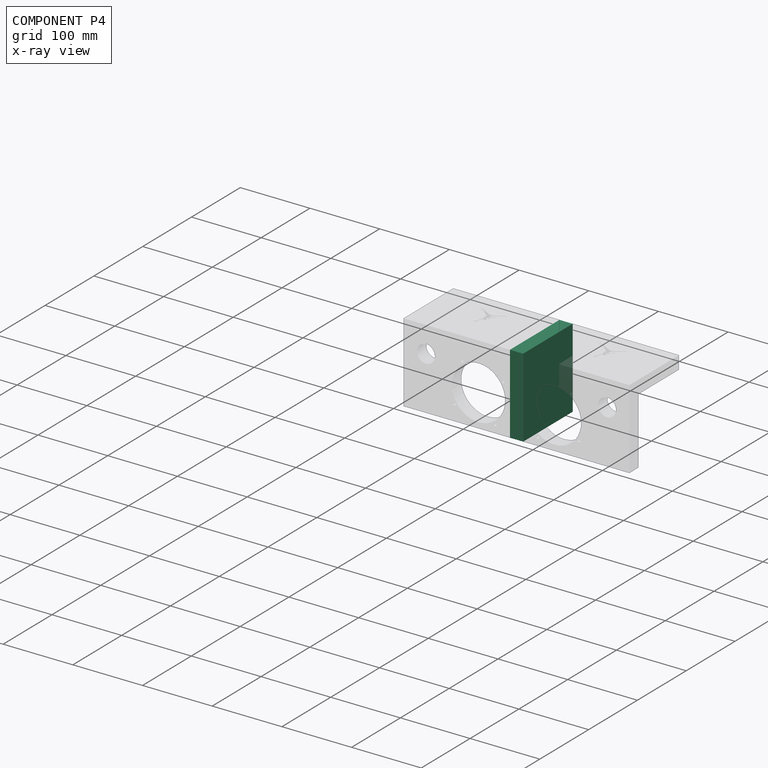
[diagram: component P4 — x-ray view]
COMPONENT P4 — recipe-attached (CADFS 00364376, mesh-verified: the recipe's output STEP matches this component's geometry to below the mesh-comparison resolution (tessellation chordal tolerance ~0.231 mm)).
Held by: FASTENED mate "Fastened 3" to P0; FASTENED mate "Fastened 2" to P2.
Construction recipe (FeatureScript — the CAD program that rebuilds this solid; sketch coordinates are in the units given by the * unit suffixes, e.g. mm):

FeatureScript 1511;
import(path : "onshape/std/geometry.fs", version : "1511.0");
import(path : "onshape/std/common.fs", version : "1511.0");
const mm = millimeter;
const VERTEX = EntityType.VERTEX;
const EDGE = EntityType.EDGE;
const FACE = EntityType.FACE;
const BODY = EntityType.BODY;
function v(x, y){return vector(x, y);}
function OD(order){return orderDisambiguation(order);}
function OSD(set){return originalSetDisambiguation(set);}
function TD(topology){return topologyDisambiguation(topology);}
function TDD(query){return trueDependencyDisambiguation(query);}
function sQuery(a, b, c) {return sketchEntityQuery(a, b, c);}

annotation { "Feature Type Name" : "Feature", "Feature Type Description" : "" }
export const myFeature = defineFeature(function(context is Context, id is Id, definition is map)
    precondition{}
    {
        {
            var Q0;
            Q0=qCreatedBy(makeId("Right.planeOp"),FACE);
            var sketch = newSketch(context, id + "F0", { "sketchPlane" : qUnion([Q0])});
            skLineSegment(sketch, "E0.bottom", {"start": v(-79.8, 81.93) * mm, "end": v(21.8, 81.93) * mm});
            skLineSegment(sketch, "E0.top", {"start": v(-79.8, -32.37) * mm, "end": v(21.8, -32.37) * mm});
            skLineSegment(sketch, "E0.left", {"start": v(-79.8, 81.93) * mm, "end": v(-79.8, -32.37) * mm});
            skLineSegment(sketch, "E0.right", {"start": v(21.8, 81.93) * mm, "end": v(21.8, -32.37) * mm});
            skSolve(sketch);
        }
        {
            var Q0;
            Q0 = qSketchRegion(id + "F0", true);
            extrude(context, id + "F1", {"entities" : qUnion([Q0]), "depth" : 19.05 * mm});
        }
    });
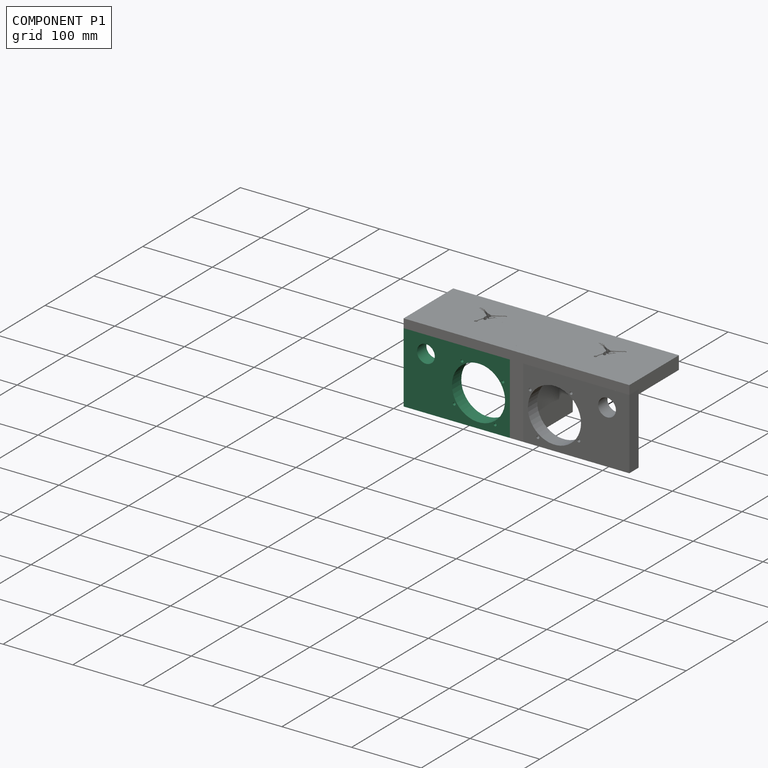
[diagram: component P1 — assembled]
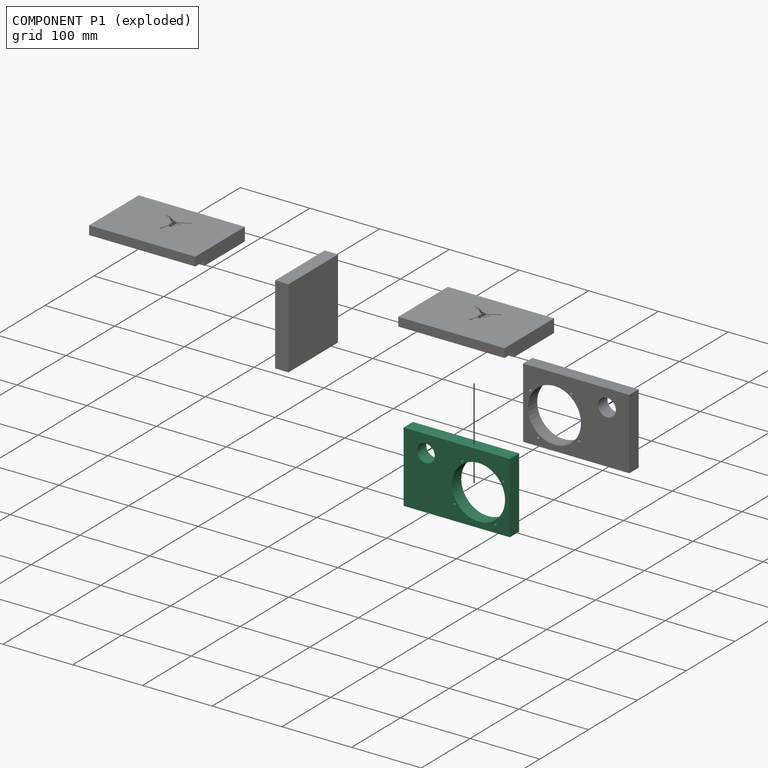
[diagram: component P1 — exploded]
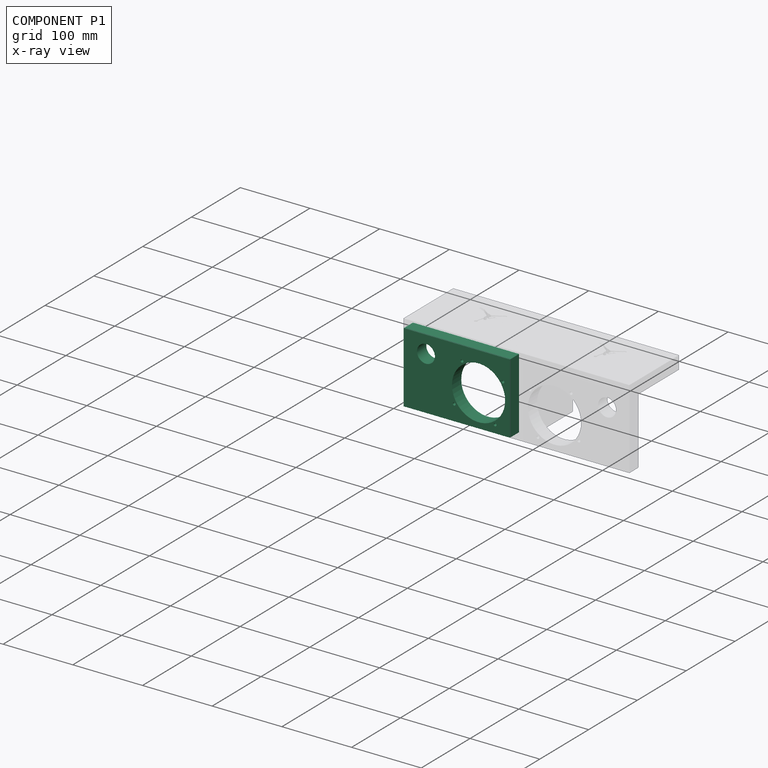
[diagram: component P1 — x-ray view]
COMPONENT P1 — recipe-attached (CADFS 00364374, mesh-verified: the recipe's output STEP matches this component's geometry to below the mesh-comparison resolution (tessellation chordal tolerance ~0.276 mm)).
Held by: FASTENED mate "Fastened 1" to P2.
Construction recipe (FeatureScript — the CAD program that rebuilds this solid; sketch coordinates are in the units given by the * unit suffixes, e.g. mm):

FeatureScript 1511;
import(path : "onshape/std/geometry.fs", version : "1511.0");
import(path : "onshape/std/common.fs", version : "1511.0");
const mm = millimeter;
const VERTEX = EntityType.VERTEX;
const EDGE = EntityType.EDGE;
const FACE = EntityType.FACE;
const BODY = EntityType.BODY;
function v(x, y){return vector(x, y);}
function OD(order){return orderDisambiguation(order);}
function OSD(set){return originalSetDisambiguation(set);}
function TD(topology){return topologyDisambiguation(topology);}
function TDD(query){return trueDependencyDisambiguation(query);}
function sQuery(a, b, c) {return sketchEntityQuery(a, b, c);}

annotation { "Feature Type Name" : "Feature", "Feature Type Description" : "" }
export const myFeature = defineFeature(function(context is Context, id is Id, definition is map)
    precondition{}
    {
        {
            var Q0;
            Q0=qCreatedBy(makeId("Front.planeOp"),FACE);
            var sketch = newSketch(context, id + "F0", { "sketchPlane" : qUnion([Q0])});
            skLineSegment(sketch, "E0.bottom", {"start": v(-73.83, 39.08) * mm, "end": v(78.57, 39.08) * mm});
            skLineSegment(sketch, "E0.top", {"start": v(-73.83, -62.52) * mm, "end": v(78.57, -62.52) * mm});
            skLineSegment(sketch, "E0.left", {"start": v(-73.83, 39.08) * mm, "end": v(-73.83, -62.52) * mm});
            skLineSegment(sketch, "E0.right", {"start": v(78.57, 39.08) * mm, "end": v(78.57, -62.52) * mm});
            skCircle(sketch, "E1", {"center": v(33.63, -16.14) * mm, "radius": 38.1 * mm});
            skSolve(sketch);
        }
        {
            var Q0;
            Q0 = qSketchRegion(id + "F0", true);
            extrude(context, id + "F1", {"entities" : qUnion([Q0]), "depth" : 19.05 * mm});
        }
        {
            var Q0;
            Q0=makeQuery(id+"F1.opExtrude","CAP_FACE",FACE,{"disambiguationData":[OSD([sQuery(id+"F0.wireOp",EDGE,"E0.bottom"),sQuery(id+"F0.wireOp",EDGE,"E0.top"),sQuery(id+"F0.wireOp",EDGE,"E0.left"),sQuery(id+"F0.wireOp",EDGE,"E0.right"),sQuery(id+"F0.wireOp",EDGE,"E1")])],"isStart":false});
            var sketch = newSketch(context, id + "F2", { "sketchPlane" : qUnion([Q0])});
            skCircle(sketch, "E2", {"center": v(-41.84, 14.2) * mm, "radius": 12.74 * mm});
            skSolve(sketch);
        }
        {
            var Q0;
            Q0 = qSketchRegion(id + "F2", true);
            extrude(context, id + "F3", {"entities" : qUnion([Q0]), "operationType" : NewBodyOperationType.REMOVE, "oppositeDirection" : true, "depth" : 25.4 * mm});
        }
        {
            var Q0;
            Q0=makeQuery(id+"F1.opExtrude","CAP_FACE",FACE,{"disambiguationData":[OSD([sQuery(id+"F0.wireOp",EDGE,"E0.bottom"),sQuery(id+"F0.wireOp",EDGE,"E0.top"),sQuery(id+"F0.wireOp",EDGE,"E0.left"),sQuery(id+"F0.wireOp",EDGE,"E0.right"),sQuery(id+"F0.wireOp",EDGE,"E1")])],"isStart":false});
            var sketch = newSketch(context, id + "F4", { "sketchPlane" : qUnion([Q0])});
            skCircle(sketch, "E3", {"center": v(33.63, -16.14) * mm, "radius": 42.28 * mm, "construction": true});
            skCircle(sketch, "E4", {"center": v(9.86, 18.82) * mm, "radius": 2.05 * mm});
            skCircle(sketch, "E5.1.0", {"center": v(-1.33, -39.92) * mm, "radius": 2.05 * mm});
            skCircle(sketch, "E5.2.0", {"center": v(57.4, -51.1) * mm, "radius": 2.05 * mm});
            skCircle(sketch, "E5.3.0", {"center": v(68.6, 7.64) * mm, "radius": 2.05 * mm});
            skSolve(sketch);
        }
        {
            var Q0;
            Q0 = qSketchRegion(id + "F4", true);
            extrude(context, id + "F5", {"entities" : qUnion([Q0]), "operationType" : NewBodyOperationType.REMOVE, "oppositeDirection" : true, "depth" : 25.4 * mm});
        }
    });
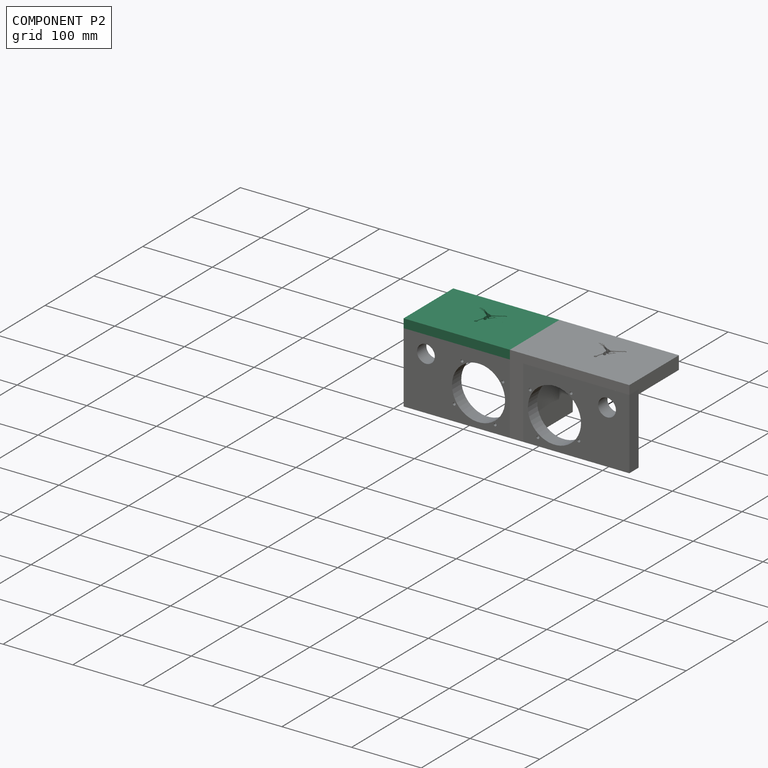
[diagram: component P2 — assembled]
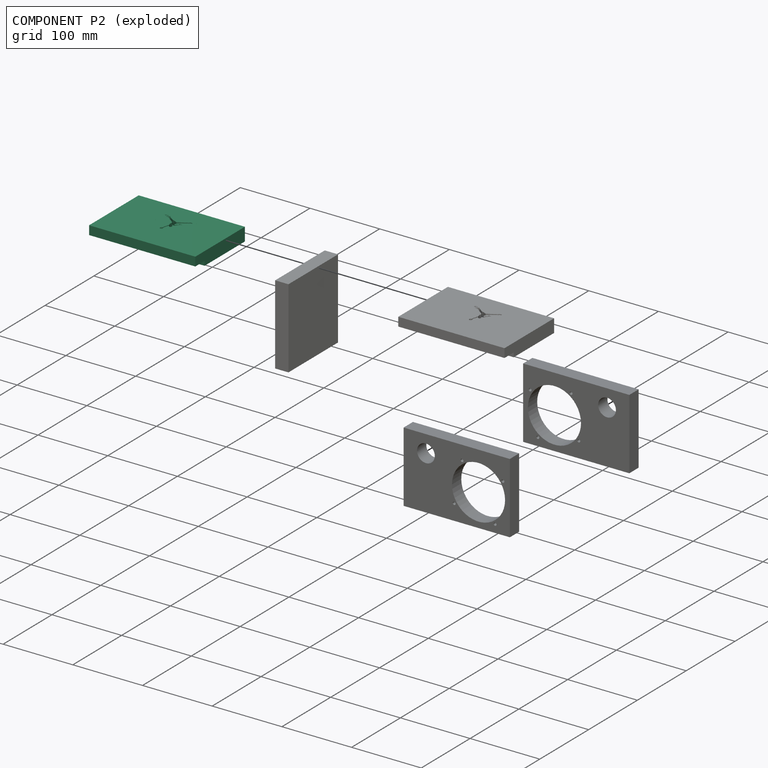
[diagram: component P2 — exploded]
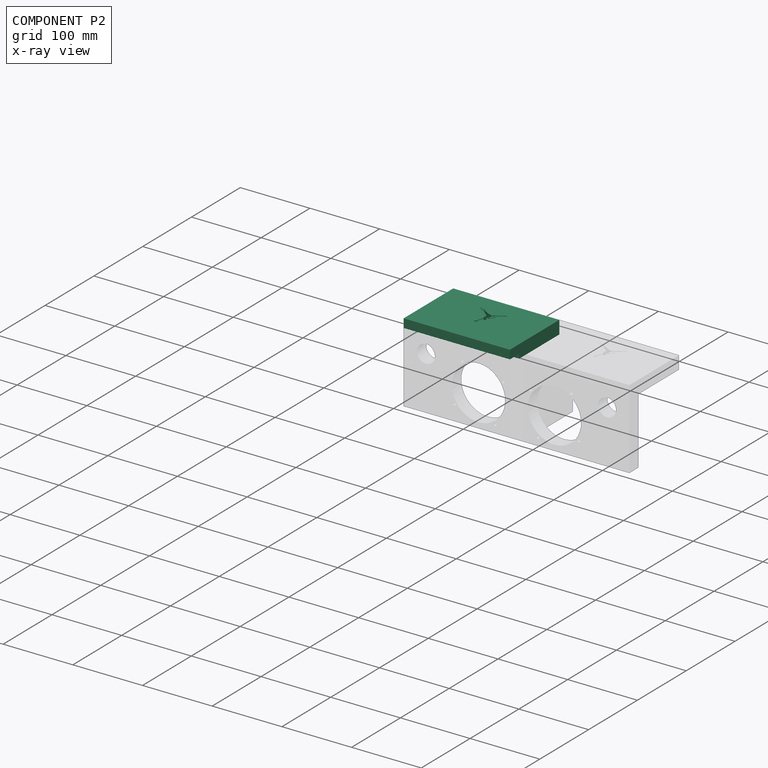
[diagram: component P2 — x-ray view]
COMPONENT P2 — same part as P0 (CADFS 00364375); its construction recipe is shown at P0.
Held by: FASTENED mate "Fastened 2" to P4; FASTENED mate "Fastened 1" to P1.
PROVENANCE & LICENSES
Assembly (occurrences, transforms, mates, per-part STEP geometry): AutoMate dataset, Zenodo record 7776208, CC0.
Construction recipes: CADFS (HuggingFace VladPyatov/CADFS, CC-BY-4.0, layered over the ABC dataset), FeatureScript reconstruction programs keyed by ABC model id.
Join: ABC meta listings map ABC model id -> Onshape documentId; within a shared document, parts are matched by geometric signature (bounding-box dims + volume at 0.1% relative tolerance, exact B-rep face/solid counts).
Verification: 5 of this assembly's 5 components carry a recipe attachment, and every attachment is mesh-verified: the CADFS STEP and the AutoMate member STEP were compared as meshes in their shared local frame (symmetric sampled-point-to-mesh distance); worst across the 5 attachments: below the mesh-comparison resolution (tessellation chordal tolerance ~0.276 mm) on a 184 mm part.
Renders: orthographic iso camera (az 35 / el 25); the floor grid conveys scale (grid pitch printed in each image; no ruler). In the exploded view each component is displaced by its stored offset vector: the offsets alone carry the explosion direction (mate normal/axis signs are not orientation cues and do not encode it), and separation distances are assigned per mate-chain, not proportionally to assembly-order depth.
